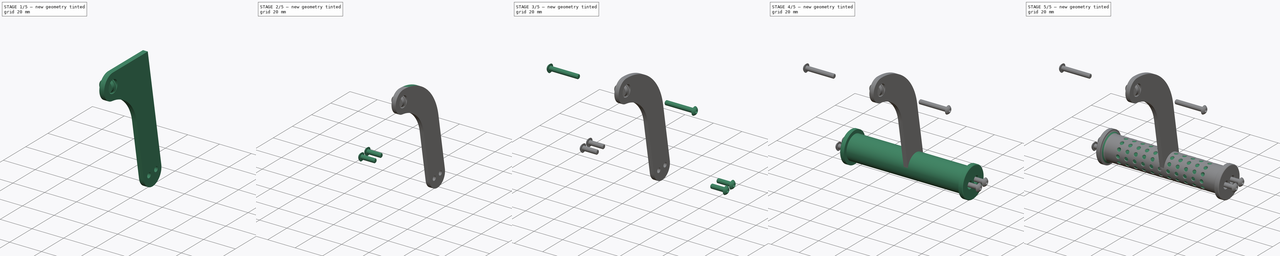
[diagram: build sequence overview — one tinted view per stage of 5, left to right]
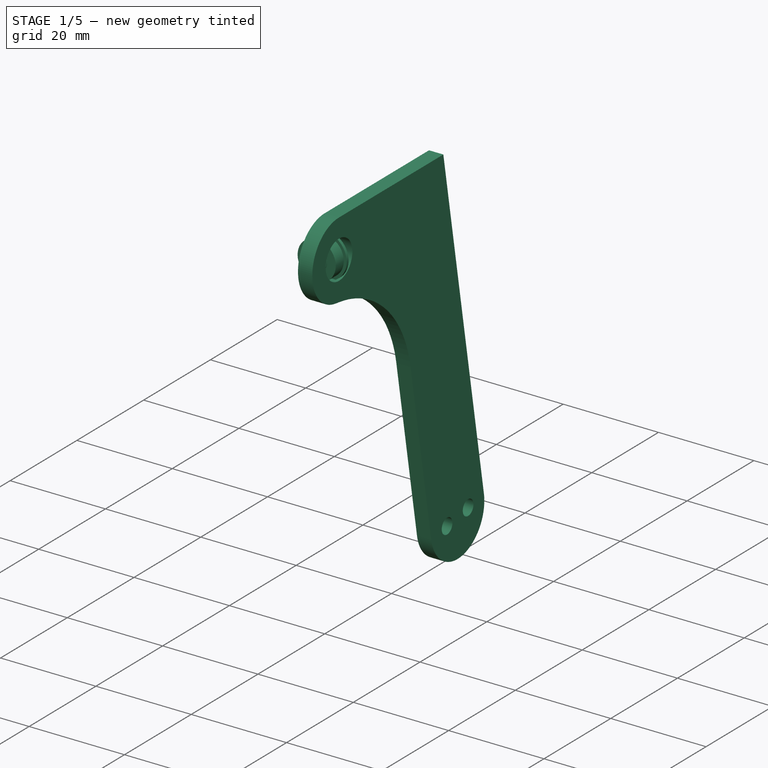
[diagram: stage 1 of 5 — iso view after this stage's code; geometry added in this stage tinted green]
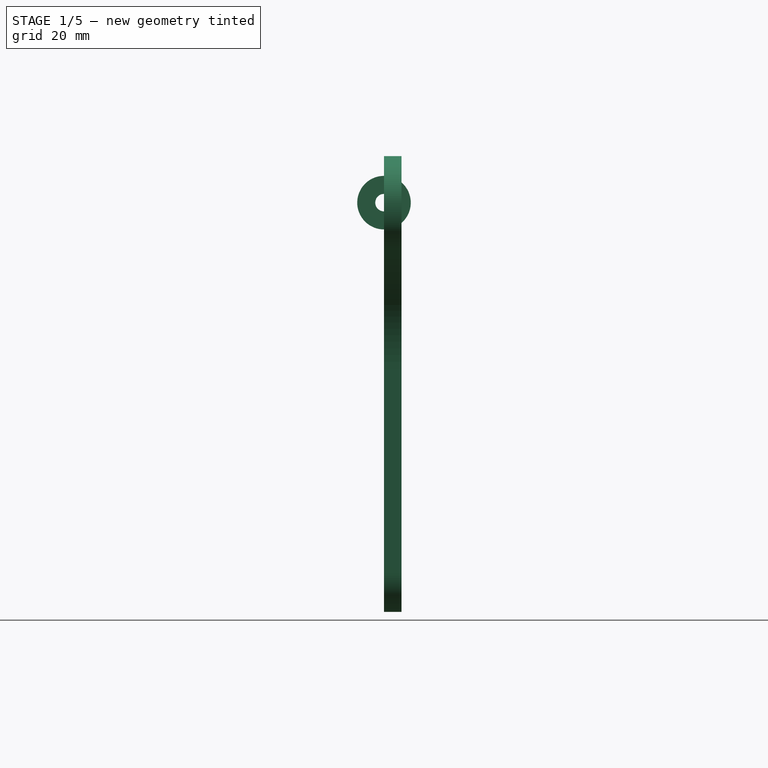
[diagram: stage 1 of 5 — front view after this stage's code; geometry added in this stage tinted green]
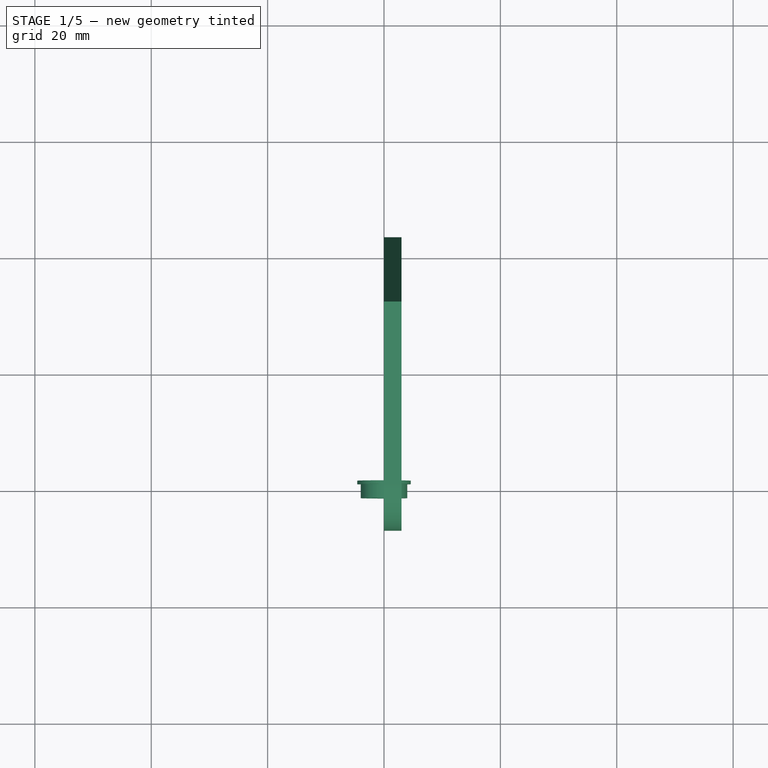
[diagram: stage 1 of 5 — top view after this stage's code; geometry added in this stage tinted green]
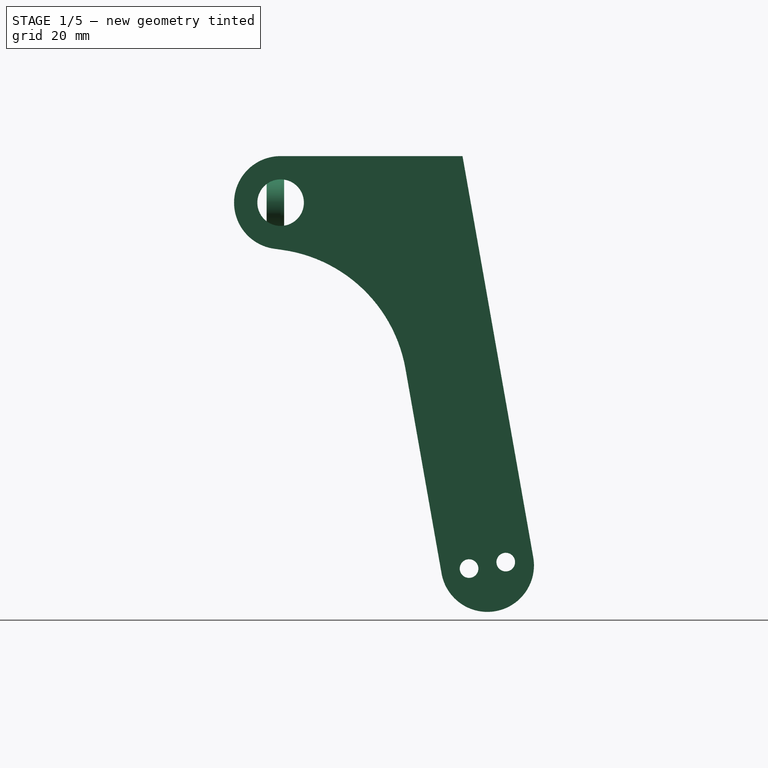
[diagram: stage 1 of 5 — right view after this stage's code; geometry added in this stage tinted green]
FCSTD DOCUMENT  (FreeCAD 2024.1006R14555 (Git shallow))
Label: handle
License: Creative Commons Attribution 4.0
LicenseURL: https://creativecommons.org/licenses/by/4.0/
objects: App::Link×7, Sketcher::SketchObject×7, Part::FeaturePython×6, PartDesign::Body×4, PartDesign::Pad×3, PartDesign::Fillet×3, PartDesign::Revolution×3, App::Part×2, PartDesign::SubShapeBinder×1, PartDesign::Plane×1, PartDesign::Chamfer×1, PartDesign::Groove×1, PartDesign::Line×1, PartDesign::LinearPattern×1, PartDesign::Mirrored×1, PartDesign::PolarPattern×1, PartDesign::MultiTransform×1, App::DocumentObjectGroup×1
note: 72 computed .brp shape members not serialized (recipe doc carries the construction recipe); baked Part::Feature solids carry a one-line shape summary decoded from their .brp
EXTERNAL_REF file=../holonomic-base.FCStd obj=Link002

FEATURE [Sketcher::SketchObject] Sketch
  ArcFitTolerance = 1e-06
  AttachmentSupport = -> [YZ_Plane041]
  ExternalBSplineMaxDegree = 5
  ExternalBSplineTolerance = 0.0001
  FixShape = 1
  FullyConstrained = true
  InternalTolerance = 1e-06
  InvalidShape = false
  MakeInternals = false
  MapMode = 5
  Placement = pos=(0,0,0) rot=(0.57735,0.57735,0.57735;2.0944rad)
  Support = -> [YZ_Plane041]
  TreeRank = 44
  ValidateShape = false
  sketch-geometry (14):
    g0: ArcOfCircle CenterX=0 CenterY=0 CenterZ=0 NormalX=0 NormalY=0 NormalZ=1 AngleXU=0 Radius=8 StartAngle=1.5708 EndAngle=4.57276
    g1: Circle CenterX=0 CenterY=0 CenterZ=0 NormalX=0 NormalY=0 NormalZ=1 AngleXU=0 Radius=4
    g2: LineSegment StartX=0 StartY=8 StartZ=0 EndX=31.2582 EndY=8 EndZ=0
    g3: LineSegment StartX=31.2582 StartY=8 StartZ=0 EndX=43.4136 EndY=-60.9365 EndZ=0
    g4: ArcOfCircle CenterX=35.5351 CenterY=-62.3257 CenterZ=0 NormalX=0 NormalY=0 NormalZ=1 AngleXU=0 Radius=8 StartAngle=3.31613 EndAngle=6.45772
    g5: LineSegment StartX=27.6567 StartY=-63.7149 StartZ=0 EndX=18.3 EndY=-10.6505 EndZ=0
    g6: LineSegment StartX=-1.11338 StartY=-7.92214 StartZ=0 EndX=18.3 EndY=-10.6505 EndZ=0
    g7: LineSegment [constr] StartX=24.6104 StartY=-63.7149 StartZ=0 EndX=15.2537 EndY=-10.6505 EndZ=0
    g8: LineSegment [constr] StartX=27.6567 StartY=-63.7149 StartZ=0 EndX=43.4136 EndY=-60.9365 EndZ=0
    g9: Circle CenterX=32.3838 CenterY=-62.8814 CenterZ=0 NormalX=0 NormalY=0 NormalZ=1 AngleXU=0 Radius=1.6
    g10: Circle CenterX=38.6865 CenterY=-61.7701 CenterZ=0 NormalX=0 NormalY=0 NormalZ=1 AngleXU=0 Radius=1.6
    g11: LineSegment [constr] StartX=27.6567 StartY=-63.7149 StartZ=0 EndX=30.8081 EndY=-63.1592 EndZ=0
    g12: LineSegment [constr] StartX=33.9595 StartY=-62.6036 StartZ=0 EndX=37.1108 EndY=-62.0479 EndZ=0
    g13: LineSegment [constr] StartX=40.2622 StartY=-61.4922 StartZ=0 EndX=43.4136 EndY=-60.9365 EndZ=0
  constraints (41):
    c: Coincident(g0,g-1)
    c: PointOnObject(g0,g-2)
    c: Coincident(g1,g0)
    c: Diameter(g1) = 8
    c: DistanceY(g0,g0) = 8
    c: Coincident(g2,g0)
    c: Horizontal(g2)
    c: Coincident(g3,g2)
    c: Angle(g2,g3) = 1.74533
    c: Tangent(g4,g3) = 1.5708
    c: Coincident(g6,g5)
    c: Tangent(g6,g0) = -1.5708
    c: Parallel(g5,g3)
    c: Parallel(g7,g5)
    c: Distance(g7,g5) = 3
    c: Equal(g0,g4)
    c: Angle(g6,g5) = 1.88496
    c: DistanceX(g0,g5) = 18.3
    c: Tangent(g5,g4) = 1.5708
    c: Distance(g3) = 70
    c: Coincident(g8,g4)
    c: Coincident(g8,g3)
    c: PointOnObject(g9,g8)
    c: Equal(g10,g9)
    c: Diameter(g10) = 3.2
    c: Symmetric(g9,g10,g4)
    c: Coincident(g11,g4)
    c: PointOnObject(g11,g8)
    c: PointOnObject(g12,g8)
    c: PointOnObject(g12,g8)
    c: PointOnObject(g13,g8)
    c: Coincident(g13,g3)
    c: PointOnObject(g13,g10)
    c: PointOnObject(g12,g10)
    c: PointOnObject(g12,g9)
    c: PointOnObject(g11,g9)
    c: Equal(g11,g12)
    c: Horizontal(g7,g5)
    c: Horizontal(g4,g7)
    c: DistanceX(g4) = 35.5351
    c: DistanceY(g4) = -62.3257
FEATURE [PartDesign::Pad] Pad
  AddSubType = 0
  AlongSketchNormal = false
  AutoTaperInnerAngle = true
  CheckUpToFaceLimits = true
  ClaimChildren = false
  Direction = (1,-2e-16,3e-16)
  Fit = 0
  FitJoin = 0
  FixShape = 1
  InnerFit = 0
  InnerFitJoin = 0
  InvalidShape = false
  Length = 3
  Length2 = 10
  Linearize = true
  NewSolid = false
  Profile = -> Sketch
  ReferenceAxis = -> Sketch [N_Axis]
  Refine = true
  Suppress = false
  TaperInnerAngle = 0
  TaperInnerAngleRev = 0
  TreeRank = 45
  Type = 0
  ValidateShape = true
  _ProfileBasedVersion = 1
FEATURE [PartDesign::Fillet] Fillet
  AddSubType = 0
  Base = -> Pad [Edge8]
  BaseFeature = -> Pad
  FixShape = 1
  InvalidShape = false
  NewSolid = false
  Radius = 25
  Refine = true
  SupportTransform = false
  Suppress = false
  TreeRank = 46
  UseAllEdges = false
  ValidateShape = true
FEATURE [PartDesign::Body] Body025  label="TexturedHandle"
  AutoGroupSolids = false
  ClaimAllChildren = false
  ExportMode = 0
  FixShape = 1
  Group = -> [Binder001,Sketch045,Pad026,DatumPlane002,Sketch046,Revolution,Chamfer008,Fillet014,Sketch047,Groove001,DatumLine001,MultiTransform,PolarPattern014,LinearPattern,Mirrored,Sketch056,Pad031]
  InvalidShape = false
  Origin = -> Origin059
  SingleSolid = true
  Tip = -> Pad031
  TreeRank = 238
  ValidateShape = false
  _ExportChildren = -> [Binder001,Pad026,DatumPlane002,Revolution,Chamfer008,Fillet014,Groove001,DatumLine001,MultiTransform,Pad031]
  _GroupVersion = 1
FEATURE [Sketcher::SketchObject] Sketch160
  ArcFitTolerance = 0
  ExternalBSplineMaxDegree = 0
  ExternalBSplineTolerance = 0
  FixShape = 1
  FullyConstrained = true
  InternalTolerance = 1e-06
  InvalidShape = false
  MakeInternals = false
  MapMode = 5
  TreeRank = 253
  ValidateShape = false
  sketch-geometry (10):
    g0: LineSegment StartX=-4.6 StartY=0 StartZ=0 EndX=-4.6 EndY=0.6 EndZ=0
    g1: LineSegment StartX=-4.6 StartY=0.6 StartZ=0 EndX=-3.4 EndY=0.6 EndZ=0
    g2: LineSegment StartX=-3.4 StartY=0.6 StartZ=0 EndX=-3.4 EndY=-2.4 EndZ=0
    g3: LineSegment StartX=-3.4 StartY=-2.4 StartZ=0 EndX=-4 EndY=-2.4 EndZ=0
    g4: LineSegment StartX=-4 StartY=-2.4 StartZ=0 EndX=-4 EndY=0 EndZ=0
    g5: LineSegment StartX=-4 StartY=0 StartZ=0 EndX=-4.6 EndY=0 EndZ=0
    g6: LineSegment StartX=-2.1 StartY=0.6 StartZ=0 EndX=-1.5 EndY=0.6 EndZ=0
    g7: LineSegment StartX=-1.5 StartY=0.6 StartZ=0 EndX=-1.5 EndY=-2.4 EndZ=0
    g8: LineSegment StartX=-1.5 StartY=-2.4 StartZ=0 EndX=-2.1 EndY=-2.4 EndZ=0
    g9: LineSegment StartX=-2.1 StartY=-2.4 StartZ=0 EndX=-2.1 EndY=0.6 EndZ=0
  constraints (30):
    c: Vertical(g0)
    c: Coincident(g0,g1)
    c: Horizontal(g1)
    c: Coincident(g1,g2)
    c: Vertical(g2)
    c: Coincident(g2,g3)
    c: Horizontal(g3)
    c: Coincident(g3,g4)
    c: Vertical(g4)
    c: Coincident(g4,g5)
    c: Coincident(g5,g0)
    c: Horizontal(g5)
    c: Coincident(g6,g7)
    c: Coincident(g7,g8)
    c: Coincident(g8,g9)
    c: Coincident(g9,g6)
    c: Horizontal(g6)
    c: Horizontal(g8)
    c: Vertical(g7)
    c: Vertical(g9)
    c: PointOnObject(g6,g1)
    c: PointOnObject(g4,g-1)
    c: DistanceY(g2,g2) = 3
    c: PointOnObject(g8,g3)
    c: DistanceX(g3) = -4
    c: DistanceX(g6) = -1.5
    c: Equal(g3,g6)
    c: DistanceX(g6,g6) = 0.6
    c: DistanceX(g0) = -4.6
    c: DistanceY(g0,g0) = 0.6
FEATURE [PartDesign::Revolution] Revolution010
  AddSubType = 0
  Angle = 360
  Axis = (0,1,0)
  Base = (0,0,0)
  ClaimChildren = false
  Fit = 0
  FitJoin = 0
  FixShape = 1
  InnerFit = 0
  InnerFitJoin = 0
  InvalidShape = false
  NewSolid = false
  Profile = -> Sketch160
  ReferenceAxis = -> Sketch160 [V_Axis]
  Refine = true
  Suppress = false
  TreeRank = 0
  ValidateShape = true
  _ProfileBasedVersion = 0
FEATURE [PartDesign::Body] Body074  label="CoreMF83"
  AutoGroupSolids = false
  ClaimAllChildren = false
  ExportMode = 0
  FixShape = 1
  Group = -> [Sketch160,Revolution010]
  InvalidShape = false
  Origin = -> Origin158
  Placement = pos=(0,2.8e-14,0) rot=(0,0,1;0rad)
  Tip = -> Revolution010
  TreeRank = 0
  ValidateShape = false
  _ExportChildren = -> [Revolution010]
  _GroupVersion = 1
FEATURE [Sketcher::SketchObject] Sketch161
  ArcFitTolerance = 0
  ExternalBSplineMaxDegree = 0
  ExternalBSplineTolerance = 0
  FixShape = 1
  FullyConstrained = true
  InternalTolerance = 1e-06
  InvalidShape = false
  MakeInternals = false
  MapMode = 5
  TreeRank = 260
  ValidateShape = false
  sketch-geometry (4):
    g0: LineSegment StartX=-3.4 StartY=0.5 StartZ=0 EndX=-2.1 EndY=0.5 EndZ=0
    g1: LineSegment StartX=-2.1 StartY=0.5 StartZ=0 EndX=-2.1 EndY=-2.3 EndZ=0
    g2: LineSegment StartX=-2.1 StartY=-2.3 StartZ=0 EndX=-3.4 EndY=-2.3 EndZ=0
    g3: LineSegment StartX=-3.4 StartY=-2.3 StartZ=0 EndX=-3.4 EndY=0.5 EndZ=0
  constraints (12):
    c: Coincident(g0,g1)
    c: Coincident(g1,g2)
    c: Coincident(g2,g3)
    c: Coincident(g3,g0)
    c: Horizontal(g0)
    c: Horizontal(g2)
    c: Vertical(g1)
    c: Vertical(g3)
    c: DistanceY(g3,g3) = 2.8
    c: DistanceX(g0,g0) = 1.3
    c: DistanceX(g0,g-1) = 2.1
    c: DistanceY(g-1,g0) = 0.5
FEATURE [PartDesign::Revolution] Revolution011
  AddSubType = 0
  Angle = 360
  Axis = (1e-16,1,-1e-16)
  Base = (0,0,0)
  ClaimChildren = false
  Fit = 0
  FitJoin = 0
  FixShape = 1
  InnerFit = 0
  InnerFitJoin = 0
  InvalidShape = false
  NewSolid = false
  Profile = -> Sketch161
  ReferenceAxis = -> Y_Axis092
  Refine = true
  Suppress = false
  TreeRank = 0
  ValidateShape = true
  _ProfileBasedVersion = 0
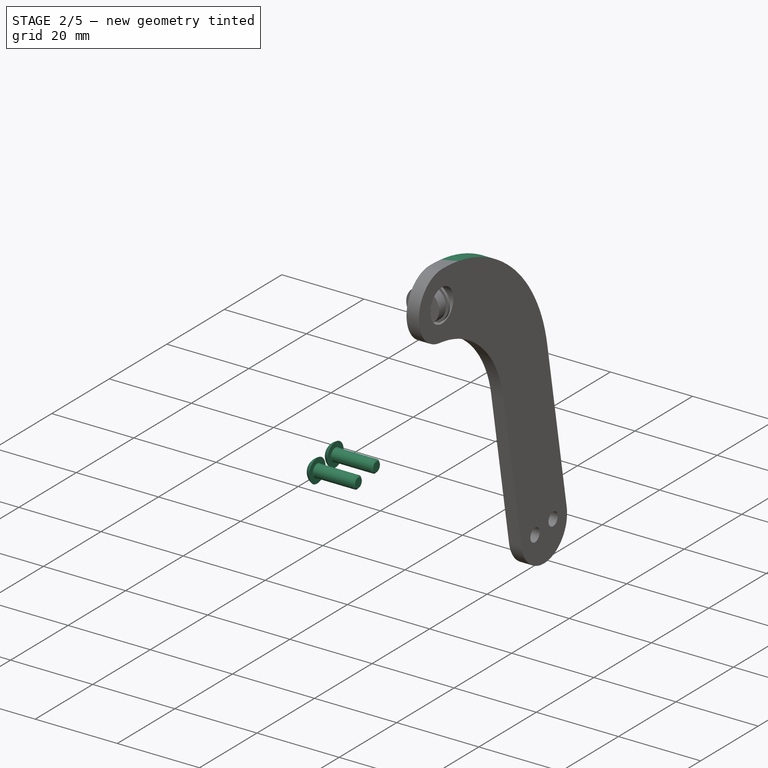
[diagram: stage 2 of 5 — iso view after this stage's code; geometry added in this stage tinted green]
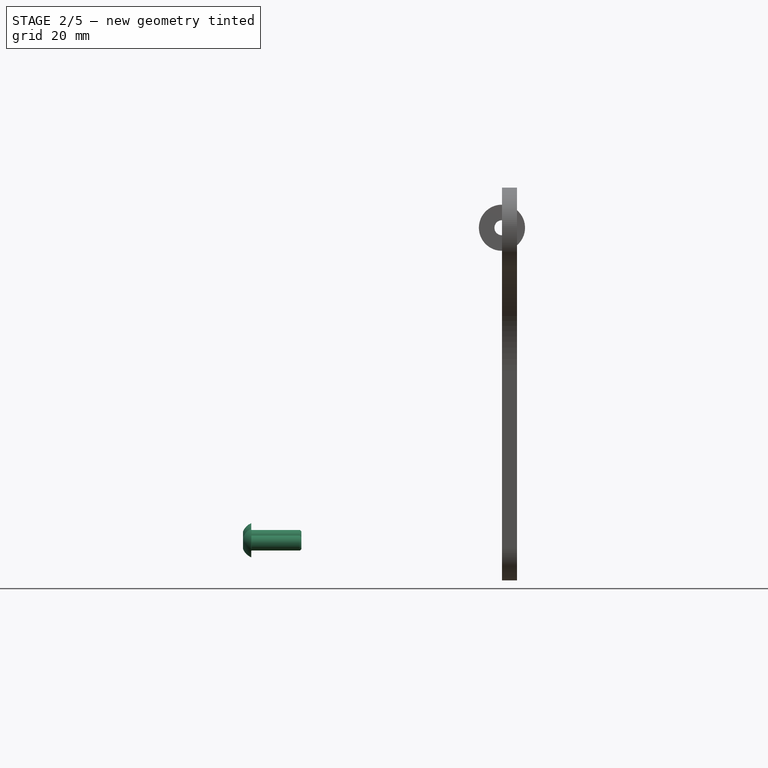
[diagram: stage 2 of 5 — front view after this stage's code; geometry added in this stage tinted green]
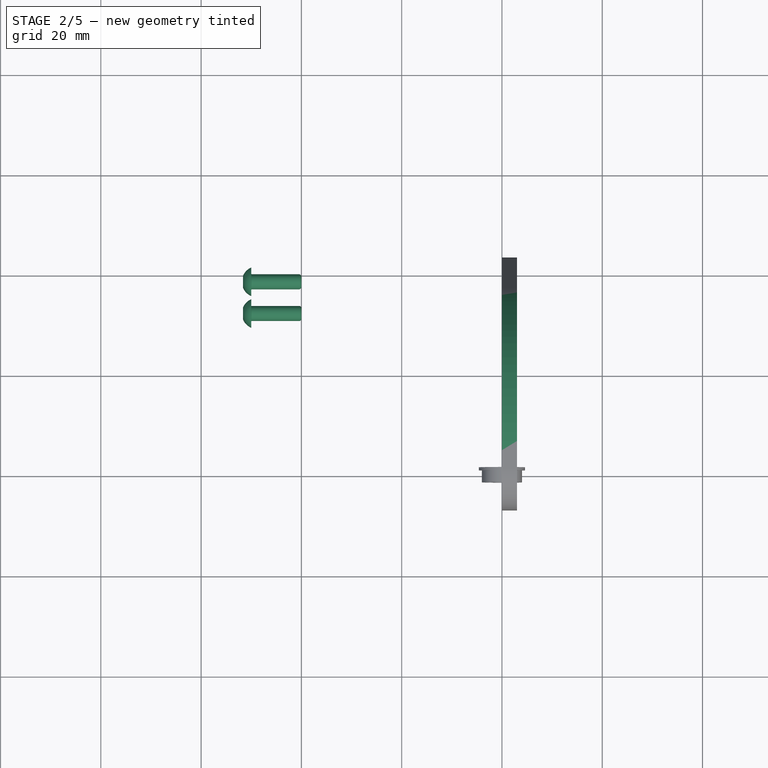
[diagram: stage 2 of 5 — top view after this stage's code; geometry added in this stage tinted green]
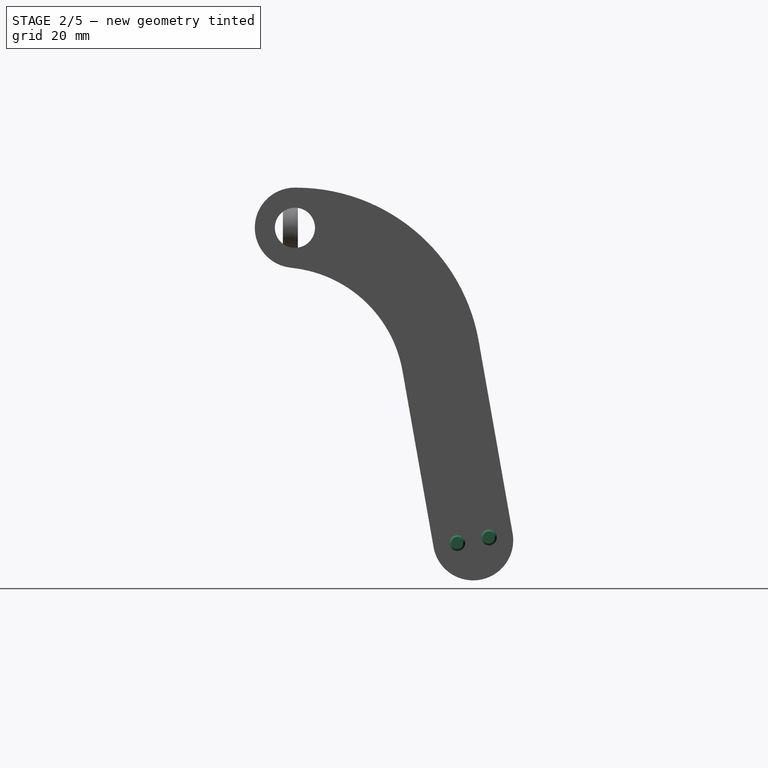
[diagram: stage 2 of 5 — right view after this stage's code; geometry added in this stage tinted green]
FEATURE [PartDesign::Fillet] Fillet012
  AddSubType = 0
  Base = -> Fillet [Edge26]
  BaseFeature = -> Fillet
  FixShape = 1
  InvalidShape = false
  NewSolid = false
  Radius = 37
  Refine = true
  SupportTransform = false
  Suppress = false
  TreeRank = 47
  UseAllEdges = false
  ValidateShape = true
FEATURE [Part::FeaturePython] Screw017  label="M3x10-Vis048"  # WARN: FeaturePython — macro-defined, semantics opaque (R4)
  Diameter = 1
  FixShape = 1
  InvalidShape = false
  Invert = false
  LeftHanded = false
  Length = 2
  LengthCustom = 10
  MatchOuter = false
  Offset = 6
  OffsetAngle = 0
  Placement = pos=(-50,32.3838,-62.8814) rot=(0,-1,0;1.5708rad)
  Thread = false
  TreeRank = 264
  Type = 84
  ValidateShape = false
FEATURE [Part::FeaturePython] Screw018  label="M3x10-Vis049"  # WARN: FeaturePython — macro-defined, semantics opaque (R4)
  Diameter = 1
  FixShape = 1
  InvalidShape = false
  Invert = false
  LeftHanded = false
  Length = 2
  LengthCustom = 10
  MatchOuter = false
  Offset = 6
  OffsetAngle = 0
  Placement = pos=(-50,38.6865,-61.7701) rot=(0,-1,0;1.5708rad)
  Thread = false
  TreeRank = 265
  Type = 84
  ValidateShape = false
FEATURE [App::DocumentObjectGroup] Group005  label="FastenersHandle"
  ClaimAllChildren = true
  ExportMode = 1
  Group = -> [Screw,Screw016,Screw017,Screw018,Screw020,Screw019]
  TreeRank = 266
  _GroupVersion = 1
FEATURE [App::Link] Link  label="Link(HandlePlate)"
  AutoLinkLabel = true
  AutoPlacement = true
  LinkPlacement = pos=(-47,0,5.34058e-05) rot=(0,0,1;0rad)
  LinkedObject = -> Body
  Placement = pos=(-47,0,5.34058e-05) rot=(0,0,1;0rad)
  SyncGroupVisibility = false
  TreeRank = 267
  _LinkVersion = 1
FEATURE [App::Link] Link034  label="Link034(HandlePlate)"
  AutoLinkLabel = true
  AutoPlacement = true
  LinkPlacement = pos=(-50,-3.05176e-05,5.34058e-05) rot=(0,0,1;0rad)
  LinkedObject = -> Body
  Placement = pos=(-50,-3.05176e-05,5.34058e-05) rot=(0,0,1;0rad)
  SyncGroupVisibility = false
  TreeRank = 268
  _LinkVersion = 1
FEATURE [App::Link] Link035  label="Link035(MF83)"
  AutoLinkLabel = true
  AutoPlacement = true
  LinkPlacement = pos=(-44.0001,-0.000183785,4.2422e-05) rot=(0.447214,0.447214,-0.774597;1.82348rad)
  LinkedObject = -> Part034
  Placement = pos=(-44.0001,-0.000183785,4.2422e-05) rot=(0.447214,0.447214,-0.774597;1.82348rad)
  SyncGroupVisibility = false
  TreeRank = 269
  _LinkVersion = 1
FEATURE [App::Link] Link036  label="Link036(MF83)"
  AutoLinkLabel = true
  AutoPlacement = true
  LinkPlacement = pos=(49.9999,-0.000188863,0.000106904) rot=(0.447214,0.447214,-0.774597;1.82348rad)
  LinkedObject = -> Part034
  Placement = pos=(49.9999,-0.000188863,0.000106904) rot=(0.447214,0.447214,-0.774597;1.82348rad)
  SyncGroupVisibility = false
  TreeRank = 270
  _LinkVersion = 1
FEATURE [App::Link] Link037  label="Link037(MF83)"
  AutoLinkLabel = true
  AutoPlacement = true
  LinkPlacement = pos=(-49.9999,-0.000268316,3.11479e-05) rot=(0.447214,-0.447214,0.774597;1.82348rad)
  LinkedObject = -> Part034
  Placement = pos=(-49.9999,-0.000268316,3.11479e-05) rot=(0.447214,-0.447214,0.774597;1.82348rad)
  SyncGroupVisibility = false
  TreeRank = 271
  _LinkVersion = 1
FEATURE [App::Part] Part  label="Handle"
  ClaimAllChildren = false
  ExportMode = 1
  Group = -> [Body025,Group005,Screw,Screw020,Screw017,Screw019,Screw016,Screw018,Body,Link030,Link032,Link,Link034,Link035,Link036,Link037]
  Origin = -> Origin
  TreeRank = 274
  _ExportChildren = -> [Body025,Group005,Body,Link030,Link032,Link,Link034,Link035,Link036,Link037]
  _GroupVersion = 1

RESOLVED EXTERNAL PARTS (link-assembly join: the EXTERNAL_REF files above that resolve inside this repo's crawl, each included once):
---- part ../holonomic-base.FCStd = doc fcstd_e8dfe22405e7 ----
FCSTD DOCUMENT  (FreeCAD 2024.1006R14555 (Git shallow))
Label: holonomic-base
License: All rights reserved
LicenseURL: http://en.wikipedia.org/wiki/All_rights_reserved
objects: App::Link×19, App::Part×1
EXTERNAL_REF file=electronical-parts/otos-sensor.FCStd obj=Part006
EXTERNAL_REF file=mechanical-parts/column-motor.FCStd obj=Part001
EXTERNAL_REF file=mechanical-parts/column-motor.FCStd obj=Body019
EXTERNAL_REF file=mechanical-parts/column-motor.FCStd obj=Part020
EXTERNAL_REF file=mechanical-parts/column-motor.FCStd obj=Part022
EXTERNAL_REF file=mechanical-parts/column-motor.FCStd obj=Part014
EXTERNAL_REF file=mechanical-parts/column-motor.FCStd obj=Part025
EXTERNAL_REF file=mechanical-parts/column-motor.FCStd obj=Part031
EXTERNAL_REF file=mechanical-parts/column-motor.FCStd obj=Part033
EXTERNAL_REF file=electronical-parts/beacon_assembled.FCStd obj=Part007
EXTERNAL_REF file=mechanical-parts/column-motor.FCStd obj=Part015
EXTERNAL_REF file=mechanical-parts/column-motor.FCStd obj=Part046
EXTERNAL_REF file=mechanical-parts/column-motor.FCStd obj=Part044
EXTERNAL_REF file=mechanical-parts/column-motor.FCStd obj=Part039
EXTERNAL_REF file=mechanical-parts/column-motor.FCStd obj=Part036
EXTERNAL_REF file=mechanical-parts/column-motor.FCStd obj=Part048
EXTERNAL_REF file=mechanical-parts/column-motor.FCStd obj=Part042

FEATURE [App::Link] Link  label="Otos_Assembly"
  AutoLinkLabel = false
  AutoPlacement = true
  LinkedObject = -> <external electronical-parts/otos-sensor.FCStd>#Part006
  SyncGroupVisibility = false
  TreeRank = 0
  _LinkVersion = 1
FEATURE [App::Link] Link002  label="Side_A"
  AutoLinkLabel = false
  AutoPlacement = true
  LinkedObject = -> <external mechanical-parts/column-motor.FCStd>#Part001
  SyncGroupVisibility = false
  TreeRank = 0
  _LinkVersion = 1
FEATURE [App::Link] Link003  label="Link003(Semelle)"
  AutoLinkLabel = false
  AutoPlacement = true
  LinkedObject = -> <external mechanical-parts/column-motor.FCStd>#Body019
  SyncGroupVisibility = false
  TreeRank = 0
  _LinkVersion = 1
FEATURE [App::Link] Link004  label="Side_B"
  AutoLinkLabel = false
  AutoPlacement = true
  LinkPlacement = pos=(0,0,0) rot=(0,0,1;2.0944rad)
  LinkedObject = -> Link002
  Placement = pos=(0,0,0) rot=(0,0,1;2.0944rad)
  SyncGroupVisibility = false
  TreeRank = 0
  _LinkVersion = 1
FEATURE [App::Link] Link005  label="Side_C"
  AutoLinkLabel = false
  AutoPlacement = true
  LinkPlacement = pos=(0,0,0) rot=(0,0,1;4.18879rad)
  LinkedObject = -> Link004
  Placement = pos=(0,0,0) rot=(0,0,1;4.18879rad)
  SyncGroupVisibility = false
  TreeRank = 0
  _LinkVersion = 1
FEATURE [App::Link] Link008  label="Link008(Battery_Assembled)"
  AutoLinkLabel = false
  AutoPlacement = true
  LinkPlacement = pos=(0,0,0) rot=(0,0,1;2.0944rad)
  LinkedObject = -> <external mechanical-parts/column-motor.FCStd>#Part020
  Placement = pos=(0,0,0) rot=(0,0,1;2.0944rad)
  SyncGroupVisibility = false
  TreeRank = 0
  _LinkVersion = 1
FEATURE [App::Link] Link009  label="Link009(DriverBoard_Assembled)"
  AutoLinkLabel = false
  AutoPlacement = true
  LinkPlacement = pos=(0,0,0) rot=(0,0,1;4.18879rad)
  LinkedObject = -> <external mechanical-parts/column-motor.FCStd>#Part022
  Placement = pos=(0,0,0) rot=(0,0,1;4.18879rad)
  SyncGroupVisibility = false
  TreeRank = 0
  _LinkVersion = 1
FEATURE [App::Link] Link010  label="Link010(Main_Board_Assembled)"
  AutoLinkLabel = false
  AutoPlacement = true
  LinkPlacement = pos=(0,0,0) rot=(0,0,1;2.0944rad)
  LinkedObject = -> <external mechanical-parts/column-motor.FCStd>#Part014
  Placement = pos=(0,0,0) rot=(0,0,1;2.0944rad)
  SyncGroupVisibility = false
  TreeRank = 0
  _LinkVersion = 1
FEATURE [App::Link] Link011  label="Link011(Ihm_Assembled)"
  AutoLinkLabel = false
  AutoPlacement = true
  LinkPlacement = pos=(0,0,0) rot=(0,0,-1;2.0944rad)
  LinkedObject = -> <external mechanical-parts/column-motor.FCStd>#Part025
  Placement = pos=(0,0,0) rot=(0,0,-1;2.0944rad)
  SyncGroupVisibility = false
  TreeRank = 0
  _LinkVersion = 1
FEATURE [App::Link] Link012  label="Link012(Screen-Assembled)"
  AutoLinkLabel = false
  AutoPlacement = true
  LinkPlacement = pos=(0,0,0) rot=(0,0,1;2.0944rad)
  LinkedObject = -> <external mechanical-parts/column-motor.FCStd>#Part031
  Placement = pos=(0,0,0) rot=(0,0,1;2.0944rad)
  SyncGroupVisibility = false
  TreeRank = 0
  _LinkVersion = 1
FEATURE [App::Link] Link013  label="Link013(BAU_Assembled)"
  AutoLinkLabel = false
  AutoPlacement = true
  LinkPlacement = pos=(0,0,0) rot=(0,0,1.125;0rad)
  LinkedObject = -> <external mechanical-parts/column-motor.FCStd>#Part033
  Placement = pos=(0,0,0) rot=(0,0,1.125;0rad)
  SyncGroupVisibility = false
  TreeRank = 0
  _LinkVersion = 1
FEATURE [App::Link] Link014  label="Link014(BeaconAssembled)"
  AutoLinkLabel = false
  AutoPlacement = true
  LinkPlacement = pos=(2.0464e-12,-3.8147e-05,320) rot=(0,0,1;4.18879rad)
  LinkedObject = -> <external electronical-parts/beacon_assembled.FCStd>#Part007
  Placement = pos=(2.0464e-12,-3.8147e-05,320) rot=(0,0,1;4.18879rad)
  SyncGroupVisibility = false
  TreeRank = 0
  _LinkVersion = 1
FEATURE [App::Link] Link015  label="Link015(XBee_Assembled)"
  AutoLinkLabel = false
  AutoPlacement = true
  LinkedObject = -> <external mechanical-parts/column-motor.FCStd>#Part015
  SyncGroupVisibility = false
  TreeRank = 0
  _LinkVersion = 1
FEATURE [App::Link] Link019  label="Link019(TopBattery_Assembled)"
  AutoLinkLabel = false
  AutoPlacement = true
  LinkPlacement = pos=(0,0,0) rot=(0,0,1;2.0944rad)
  LinkedObject = -> <external mechanical-parts/column-motor.FCStd>#Part046
  Placement = pos=(0,0,0) rot=(0,0,1;2.0944rad)
  SyncGroupVisibility = false
  TreeRank = 0
  _LinkVersion = 1
FEATURE [App::Link] Link020  label="Link020(Cache10mm_Assembled)"
  AutoLinkLabel = false
  AutoPlacement = true
  LinkedObject = -> <external mechanical-parts/column-motor.FCStd>#Part044
  SyncGroupVisibility = false
  TreeRank = 0
  _LinkVersion = 1
FEATURE [App::Link] Link021  label="Link021(PCA9685_Assembled)"
  AutoLinkLabel = false
  AutoPlacement = true
  LinkedObject = -> <external mechanical-parts/column-motor.FCStd>#Part039
  SyncGroupVisibility = false
  TreeRank = 0
  _LinkVersion = 1
FEATURE [App::Link] Link023  label="Link023(Servo_Assembled)"
  AutoLinkLabel = false
  AutoPlacement = true
  LinkedObject = -> <external mechanical-parts/column-motor.FCStd>#Part036
  SyncGroupVisibility = false
  TreeRank = 0
  _LinkVersion = 1
FEATURE [App::Link] Link024  label="Link024(CacheCable_Assembled)"
  AutoLinkLabel = true
  AutoPlacement = true
  LinkedObject = -> <external mechanical-parts/column-motor.FCStd>#Part048
  SyncGroupVisibility = false
  TreeRank = 1
  _LinkVersion = 1
FEATURE [App::Link] Link025  label="Link025(Pump_Assembled)"
  AutoLinkLabel = true
  AutoPlacement = true
  LinkedObject = -> <external mechanical-parts/column-motor.FCStd>#Part042
  SyncGroupVisibility = false
  TreeRank = 2
  _LinkVersion = 1
FEATURE [App::Part] Part  label="holonomic-base-2025"
  ClaimAllChildren = false
  ExportMode = 1
  Group = -> [Link,Link002,Link003,Link004,Link005,Link008,Link009,Link010,Link011,Link012,Link013,Link014,Link015,Link019,Link020,Link021,Link023,Link024,Link025]
  Origin = -> Origin
  TreeRank = 5
  _ExportChildren = -> [Link,Link002,Link003,Link004,Link005,Link008,Link009,Link010,Link011,Link012,Link013,Link014,Link015,Link019,Link020,Link021,Link023,Link024,Link025]
  _GroupVersion = 1
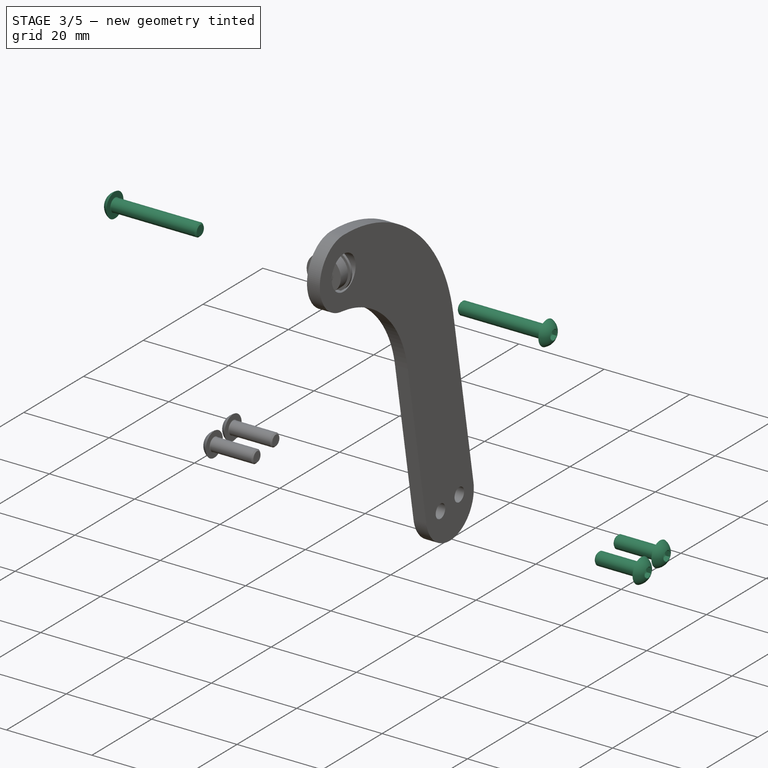
[diagram: stage 3 of 5 — iso view after this stage's code; geometry added in this stage tinted green]
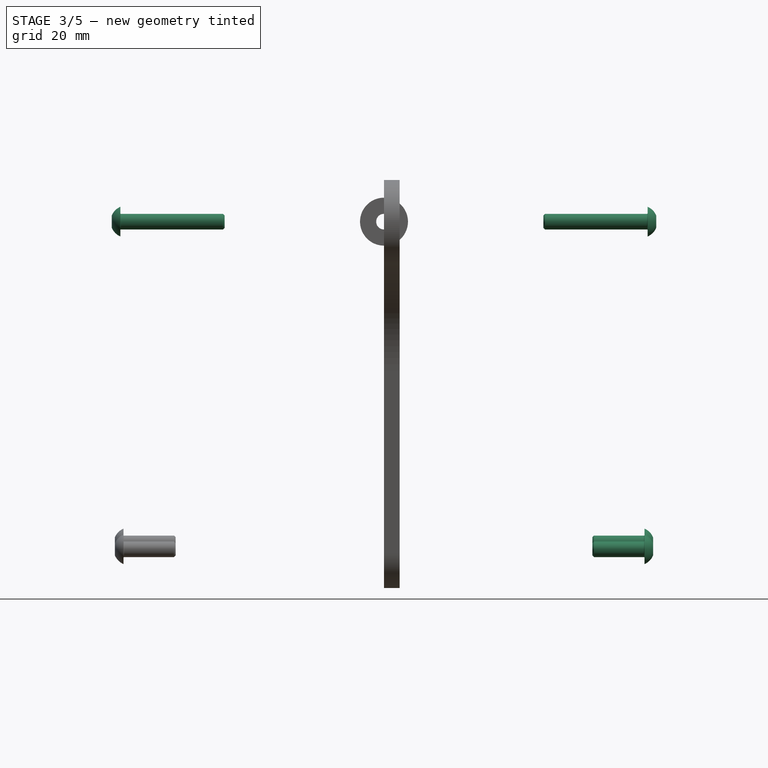
[diagram: stage 3 of 5 — front view after this stage's code; geometry added in this stage tinted green]
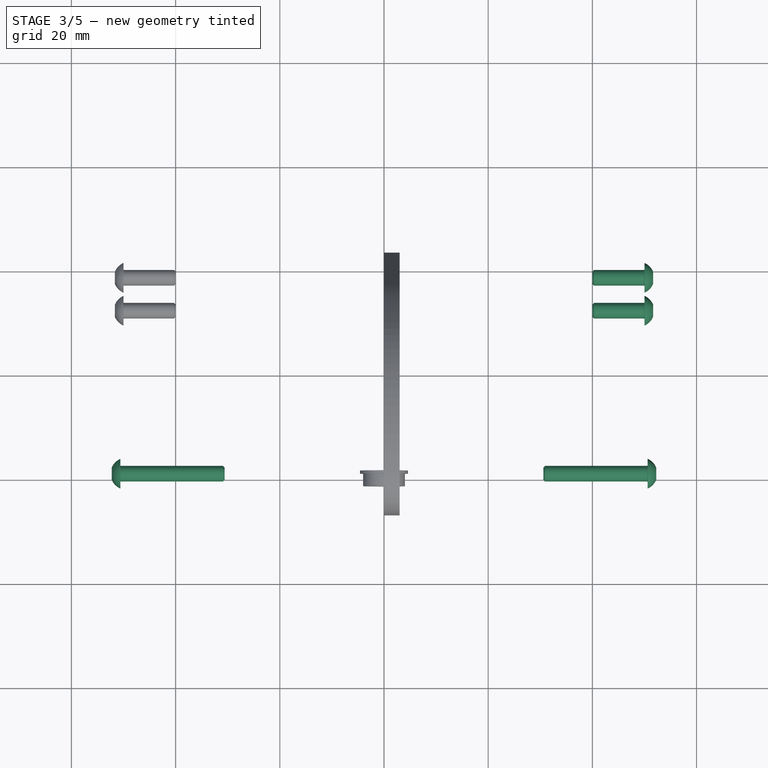
[diagram: stage 3 of 5 — top view after this stage's code; geometry added in this stage tinted green]
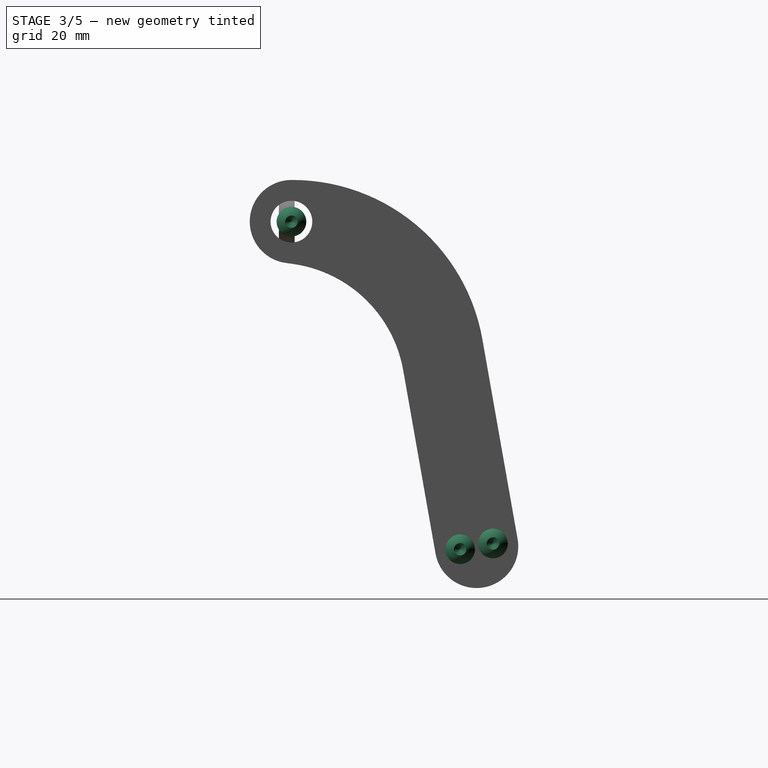
[diagram: stage 3 of 5 — right view after this stage's code; geometry added in this stage tinted green]
FEATURE [PartDesign::SubShapeBinder] Binder001  label="Binder001(Fillet012)"
  BindCopyOnChange = 0
  BindMode = 2
  ClaimChildren = false
  Context = -> <external ../holonomic-base.FCStd>#Link002 [Part015.Part017.Body025.Binder001.]
  EdgeTolerance = 1e-06
  FillStyle = 0
  FixShape = 1
  Fuse = false
  InvalidShape = false
  MakeFace = true
  MergeEdges = true
  OffsetFill = false
  OffsetIntersection = false
  OffsetJoinType = 0
  OffsetOpenResult = false
  Outline = false
  PartialLoad = false
  Relative = true
  SplitEdges = false
  TightBound = false
  TreeRank = 235
  ValidateShape = false
  _Version = 8
FEATURE [PartDesign::Plane] DatumPlane002
  AttachmentOffset = pos=(0,0,0) rot=(0,1,0;1.5708rad)
  FixShape = 1
  InvalidShape = false
  Length = 88
  MapMode = 45
  MinimumLength = 10
  MinimumWidth = 10
  Placement = pos=(1.95e-14,35.5351,-62.3257) rot=(0,0.707107,0.707107;3.14159rad)
  ResizeMode = 0
  TreeRank = 118
  ValidateShape = false
  Width = 22
FEATURE [App::Link] Link030  label="Link030(HandlePlate)"
  AutoLinkLabel = true
  AutoPlacement = true
  LinkPlacement = pos=(47,-2.67029e-05,5.34058e-05) rot=(0,0,1;0rad)
  LinkedObject = -> Body
  Placement = pos=(47,-2.67029e-05,5.34058e-05) rot=(0,0,1;0rad)
  SyncGroupVisibility = false
  TreeRank = 241
  _LinkVersion = 1
FEATURE [App::Link] Link032  label="Link032(MF83)"
  AutoLinkLabel = true
  AutoPlacement = true
  LinkPlacement = pos=(44,5.78165e-06,1.52588e-05) rot=(0,0,1;1.5708rad)
  LinkedObject = -> Part034
  Placement = pos=(44,5.78165e-06,1.52588e-05) rot=(0,0,1;1.5708rad)
  SyncGroupVisibility = false
  TreeRank = 65
  _LinkVersion = 1
FEATURE [Part::FeaturePython] Screw019  label="M3x20-Vis"  # WARN: FeaturePython — macro-defined, semantics opaque (R4)
  Diameter = 1
  FixShape = 1
  InvalidShape = false
  Invert = false
  LeftHanded = false
  Length = 6
  LengthCustom = 20
  MatchOuter = false
  OffsetAngle = 0
  Placement = pos=(50.6,0,-2.99e-14) rot=(0,1,0;1.5708rad)
  Thread = false
  TreeRank = 140
  Type = 84
  ValidateShape = false
FEATURE [Part::FeaturePython] Screw020  label="M3x20-Vis001"  # WARN: FeaturePython — macro-defined, semantics opaque (R4)
  Diameter = 1
  FixShape = 1
  InvalidShape = false
  Invert = false
  LeftHanded = false
  Length = 6
  LengthCustom = 20
  MatchOuter = false
  OffsetAngle = 0
  Placement = pos=(-50.6,0,-1.12e-14) rot=(0,-1,0;1.5708rad)
  Thread = false
  TreeRank = 141
  Type = 84
  ValidateShape = false
FEATURE [PartDesign::Body] Body075  label="SleeveMF83"
  AutoGroupSolids = false
  ClaimAllChildren = false
  ExportMode = 0
  FixShape = 1
  Group = -> [Sketch161,Revolution011]
  InvalidShape = false
  Origin = -> Origin159
  Placement = pos=(0,2.8e-14,0) rot=(0,0,1;0rad)
  SingleSolid = true
  Tip = -> Revolution011
  TreeRank = 0
  ValidateShape = false
  _ExportChildren = -> [Revolution011]
  _GroupVersion = 1
FEATURE [App::Part] Part034  label="MF83"
  ClaimAllChildren = false
  ExportMode = 1
  Group = -> [Body074,Body075]
  Origin = -> Origin160
  TreeRank = 246
  _ExportChildren = -> [Body074,Body075]
  _GroupVersion = 1
FEATURE [Part::FeaturePython] Screw  label="M3x10-Vis"  # WARN: FeaturePython — macro-defined, semantics opaque (R4)
  Diameter = 1
  FixShape = 1
  InvalidShape = false
  Invert = false
  LeftHanded = false
  Length = 2
  LengthCustom = 10
  MatchOuter = false
  Offset = 6
  OffsetAngle = 0
  Placement = pos=(50,38.6865,-61.7701) rot=(0,1,0;1.5708rad)
  Thread = false
  TreeRank = 262
  Type = 84
  ValidateShape = false
FEATURE [Part::FeaturePython] Screw016  label="M3x10-Vis047"  # WARN: FeaturePython — macro-defined, semantics opaque (R4)
  Diameter = 1
  FixShape = 1
  InvalidShape = false
  Invert = false
  LeftHanded = false
  Length = 2
  LengthCustom = 10
  MatchOuter = false
  Offset = 6
  OffsetAngle = 0
  Placement = pos=(50,32.3838,-62.8814) rot=(0,1,0;1.5708rad)
  Thread = false
  TreeRank = 263
  Type = 84
  ValidateShape = false
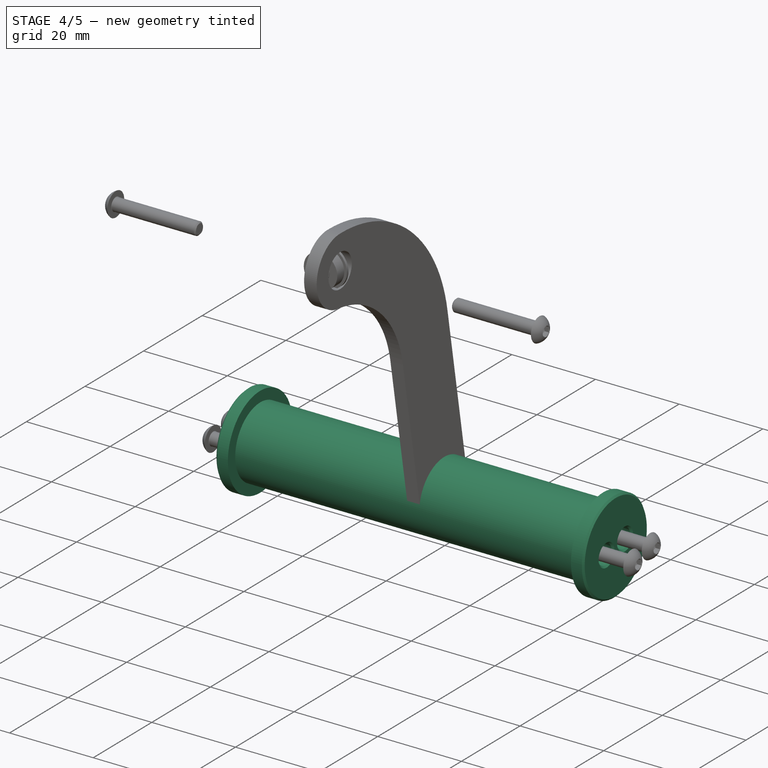
[diagram: stage 4 of 5 — iso view after this stage's code; geometry added in this stage tinted green]
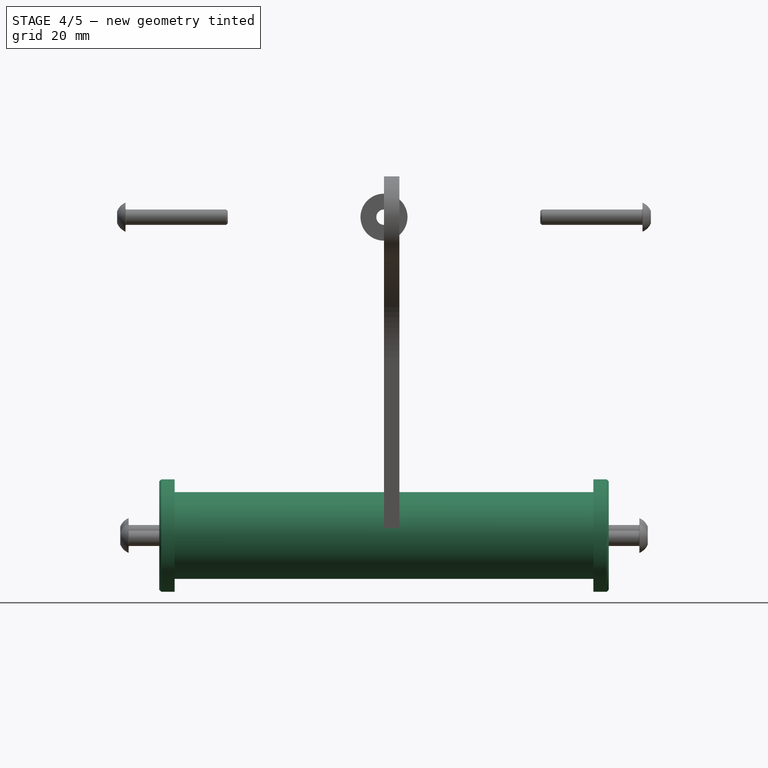
[diagram: stage 4 of 5 — front view after this stage's code; geometry added in this stage tinted green]
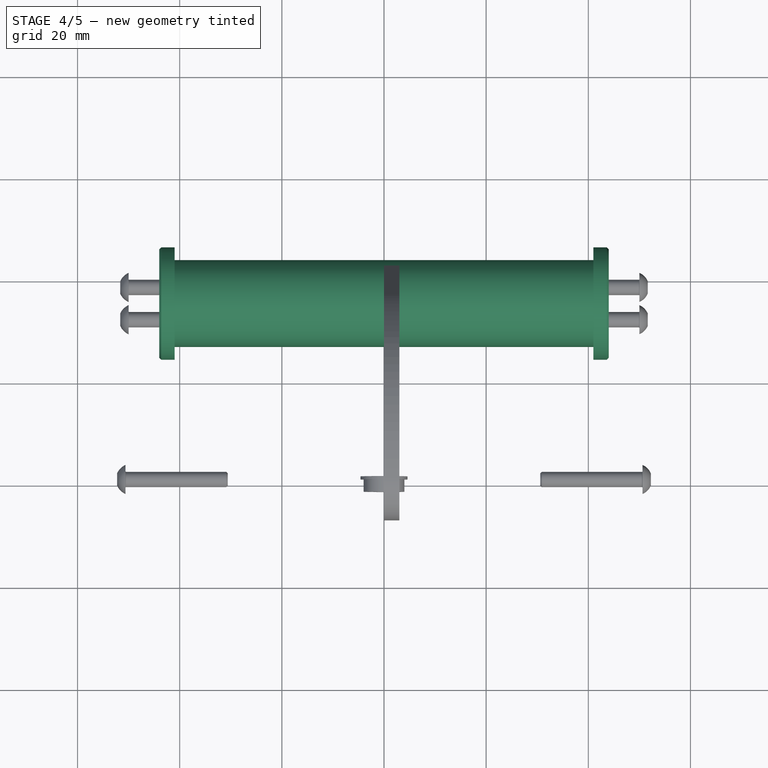
[diagram: stage 4 of 5 — top view after this stage's code; geometry added in this stage tinted green]
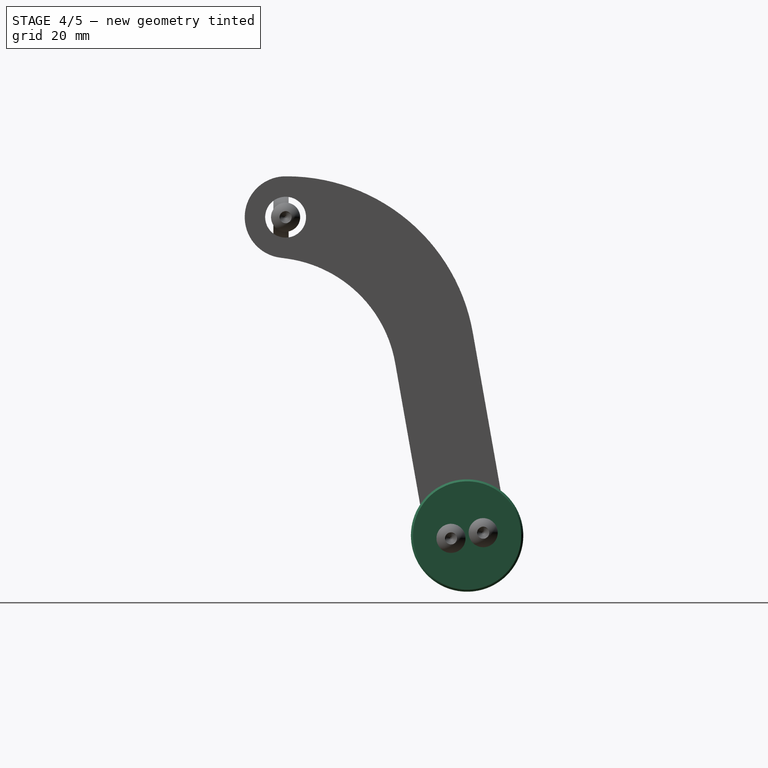
[diagram: stage 4 of 5 — right view after this stage's code; geometry added in this stage tinted green]
FEATURE [PartDesign::Body] Body  label="HandlePlate"
  AutoGroupSolids = false
  ClaimAllChildren = false
  ExportMode = 0
  FixShape = 1
  Group = -> [Sketch,Pad,Fillet,Fillet012]
  InvalidShape = false
  Origin = -> Origin055
  Placement = pos=(44,0,0) rot=(0,0,1;0rad)
  SingleSolid = true
  Tip = -> Fillet012
  TreeRank = 236
  ValidateShape = false
  _ExportChildren = -> [Pad,Fillet,Fillet012]
  _GroupVersion = 1
FEATURE [Sketcher::SketchObject] Sketch045
  ArcFitTolerance = 1e-06
  AttachmentSupport = -> [YZ_Plane045]
  ExternalBSplineMaxDegree = 5
  ExternalBSplineTolerance = 0.0001
  ExternalGeometry = -> [Binder001]
  FixShape = 1
  FullyConstrained = true
  InternalTolerance = 1e-06
  InvalidShape = false
  MakeInternals = false
  MapMode = 5
  Placement = pos=(0,0,0) rot=(0.57735,0.57735,0.57735;2.0944rad)
  Support = -> [YZ_Plane045]
  TreeRank = 115
  ValidateShape = false
  sketch-geometry (4):
    g0: Circle [constr] CenterX=35.5351 CenterY=-62.3257 CenterZ=0 NormalX=0 NormalY=0 NormalZ=1 AngleXU=0 Radius=6
    g1: Circle CenterX=35.5351 CenterY=-62.3257 CenterZ=0 NormalX=0 NormalY=0 NormalZ=1 AngleXU=0 Radius=8.5
    g2: Circle CenterX=32.3838 CenterY=-62.8814 CenterZ=0 NormalX=0 NormalY=0 NormalZ=1 AngleXU=0 Radius=2.3
    g3: Circle CenterX=38.6865 CenterY=-61.7701 CenterZ=0 NormalX=0 NormalY=0 NormalZ=1 AngleXU=0 Radius=2.3
  constraints (8):
    c: Coincident(g0,g-3)
    c: Diameter(g0) = 12
    c: Coincident(g1,g0)
    c: Diameter(g1) = 17
    c: Coincident(g2,g-4)
    c: Coincident(g3,g-5)
    c: Equal(g3,g2)
    c: Diameter(g3) = 4.6
FEATURE [PartDesign::Pad] Pad026
  AddSubType = 0
  AlongSketchNormal = false
  AutoTaperInnerAngle = true
  CheckUpToFaceLimits = true
  ClaimChildren = false
  Direction = (1,-2e-16,3e-16)
  Fit = 0
  FitJoin = 0
  FixShape = 1
  InnerFit = 0
  InnerFitJoin = 0
  InvalidShape = false
  Length = 88
  Length2 = 10
  Linearize = true
  Midplane = true
  NewSolid = false
  Profile = -> Sketch045
  ReferenceAxis = -> Sketch045 [N_Axis]
  Refine = true
  Suppress = false
  TaperInnerAngle = 0
  TaperInnerAngleRev = 0
  TreeRank = 116
  Type = 0
  ValidateShape = true
  _ProfileBasedVersion = 1
FEATURE [Sketcher::SketchObject] Sketch046
  ArcFitTolerance = 1e-06
  AttachmentSupport = -> [DatumPlane002]
  ExternalBSplineMaxDegree = 5
  ExternalBSplineTolerance = 0.0001
  ExternalGeometry = -> [Pad026]
  FixShape = 1
  FullyConstrained = true
  InternalTolerance = 1e-06
  InvalidShape = false
  MakeInternals = false
  MapMode = 5
  Placement = pos=(1.95e-14,35.5351,-62.3257) rot=(0,0.707107,0.707107;3.14159rad)
  Support = -> [DatumPlane002]
  TreeRank = 119
  ValidateShape = false
  sketch-geometry (8):
    g0: LineSegment StartX=-44 StartY=8.5 StartZ=0 EndX=-41 EndY=8.5 EndZ=0
    g1: LineSegment StartX=-41 StartY=8.5 StartZ=0 EndX=-41 EndY=11 EndZ=0
    g2: LineSegment StartX=-41 StartY=11 StartZ=0 EndX=-44 EndY=11 EndZ=0
    g3: LineSegment StartX=-44 StartY=11 StartZ=0 EndX=-44 EndY=8.5 EndZ=0
    g4: LineSegment StartX=44 StartY=8.5 StartZ=0 EndX=41 EndY=8.5 EndZ=0
    g5: LineSegment StartX=41 StartY=8.5 StartZ=0 EndX=41 EndY=11 EndZ=0
    g6: LineSegment StartX=41 StartY=11 StartZ=0 EndX=44 EndY=11 EndZ=0
    g7: LineSegment StartX=44 StartY=11 StartZ=0 EndX=44 EndY=8.5 EndZ=0
  constraints (22):
    c: Coincident(g0,g1)
    c: Coincident(g1,g2)
    c: Coincident(g2,g3)
    c: Coincident(g3,g0)
    c: Horizontal(g0)
    c: Horizontal(g2)
    c: Vertical(g1)
    c: Vertical(g3)
    c: Coincident(g4,g5)
    c: Coincident(g5,g6)
    c: Coincident(g6,g7)
    c: Coincident(g7,g4)
    c: Horizontal(g4)
    c: Horizontal(g6)
    c: Vertical(g5)
    c: Vertical(g7)
    c: Symmetric(g4,g0,g-2)
    c: Equal(g0,g4)
    c: Equal(g5,g1)
    c: DistanceX(g2,g2) = 3
    c: DistanceY(g-1,g2) = 11
    c: Coincident(g0,g-3)
FEATURE [PartDesign::Revolution] Revolution
  AddSubType = 0
  Angle = 360
  Axis = (-1,1e-16,-1e-16)
  Base = (1.95e-14,35.5351,-62.3257)
  BaseFeature = -> Pad026
  ClaimChildren = false
  Fit = 0
  FitJoin = 0
  FixShape = 1
  InnerFit = 0
  InnerFitJoin = 0
  InvalidShape = false
  Linearize = true
  NewSolid = false
  Profile = -> Sketch046
  ReferenceAxis = -> Sketch046 [H_Axis]
  Refine = true
  Suppress = false
  TreeRank = 120
  ValidateShape = true
  _ProfileBasedVersion = 1
FEATURE [PartDesign::Chamfer] Chamfer008
  AddSubType = 0
  Angle = 45
  Base = -> Revolution [Edge11,Edge9,Edge17,Edge15,Edge13,Edge12]
  BaseFeature = -> Revolution
  ChamferType = 0
  FixShape = 1
  FlipDirection = false
  InvalidShape = false
  NewSolid = false
  Refine = true
  Size = 0.4
  Size2 = 1
  SupportTransform = false
  Suppress = false
  TreeRank = 121
  UseAllEdges = false
  ValidateShape = true
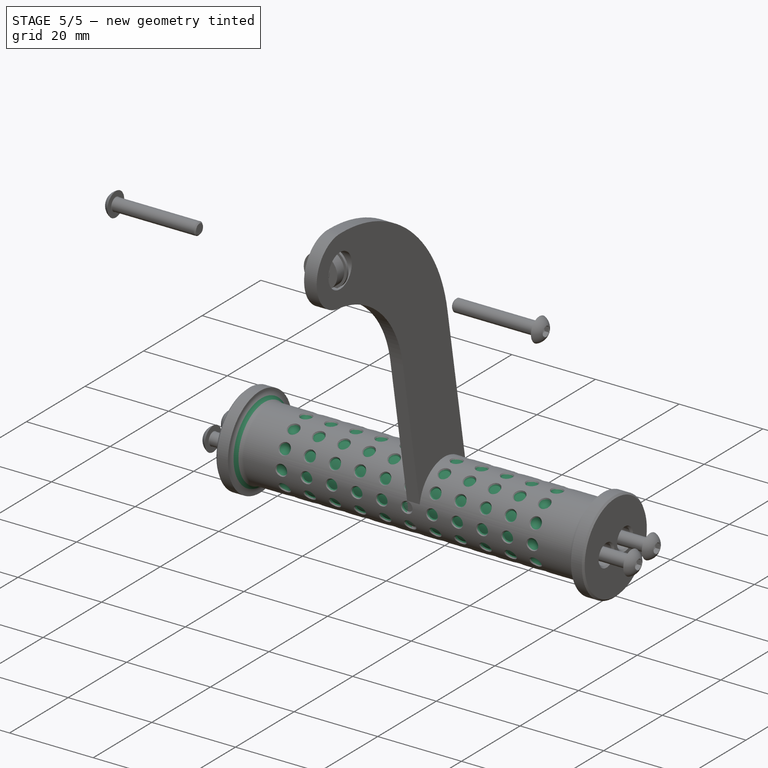
[diagram: stage 5 of 5 — iso view after this stage's code; geometry added in this stage tinted green]
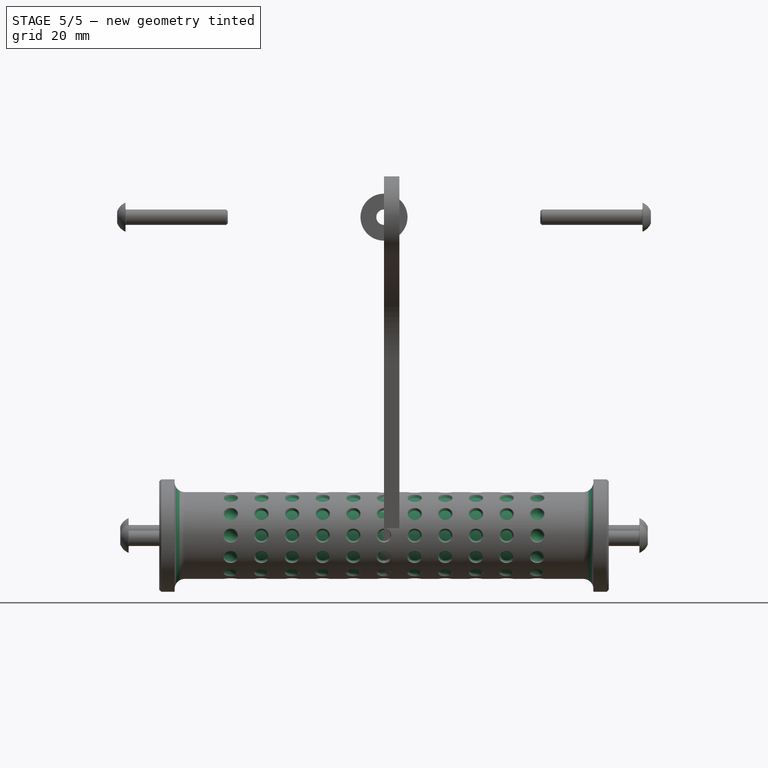
[diagram: stage 5 of 5 — front view after this stage's code; geometry added in this stage tinted green]
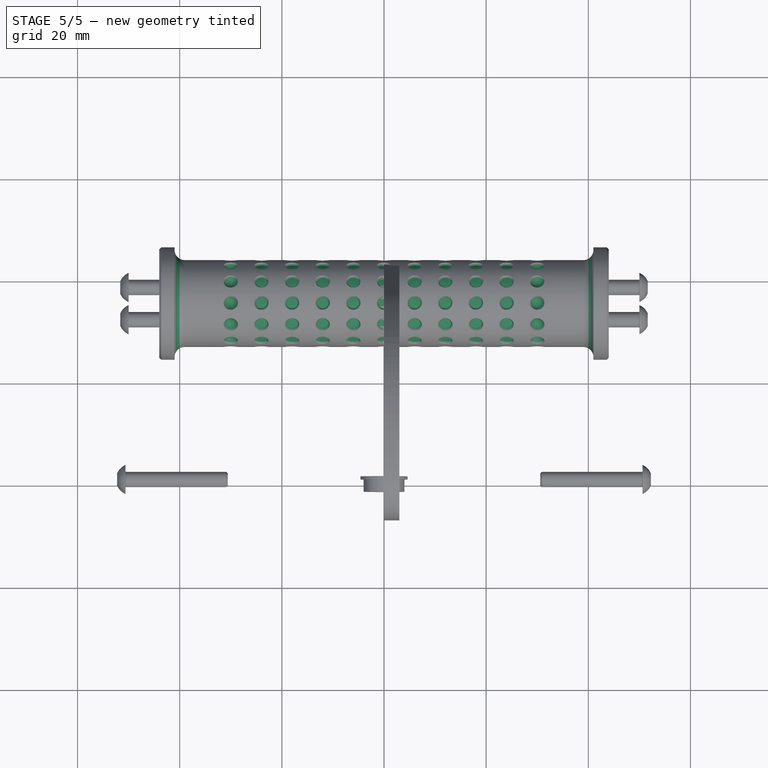
[diagram: stage 5 of 5 — top view after this stage's code; geometry added in this stage tinted green]
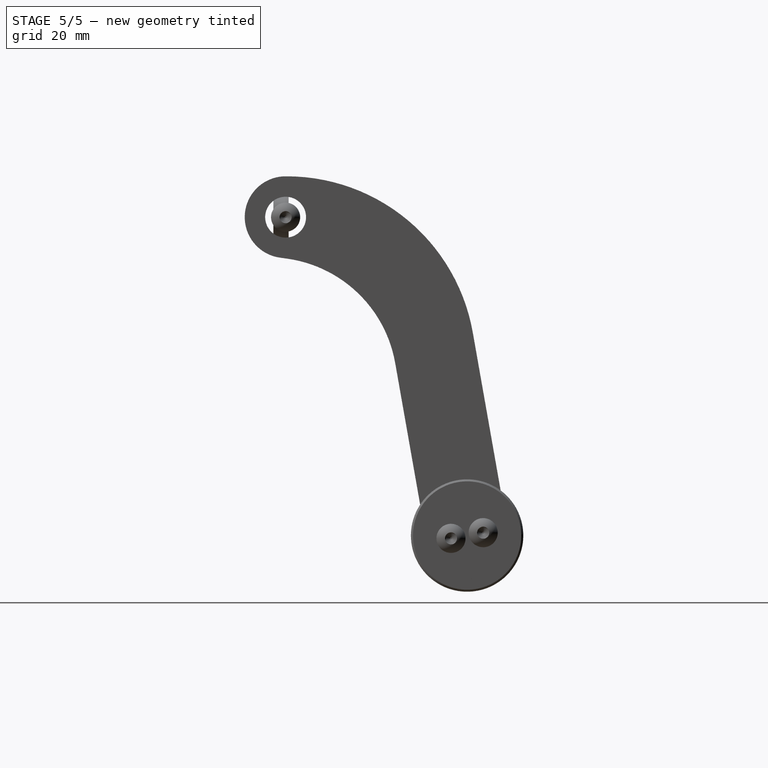
[diagram: stage 5 of 5 — right view after this stage's code; geometry added in this stage tinted green]
FEATURE [PartDesign::Fillet] Fillet014
  AddSubType = 0
  Base = -> Chamfer008 [Edge7,Edge11]
  BaseFeature = -> Chamfer008
  FixShape = 1
  InvalidShape = false
  NewSolid = false
  Radius = 2
  Refine = true
  SupportTransform = false
  Suppress = false
  TreeRank = 122
  UseAllEdges = false
  ValidateShape = true
FEATURE [Sketcher::SketchObject] Sketch047
  ArcFitTolerance = 1e-06
  AttachmentSupport = -> [DatumPlane002]
  ExternalBSplineMaxDegree = 5
  ExternalBSplineTolerance = 0.0001
  FixShape = 1
  FullyConstrained = true
  InternalTolerance = 1e-06
  InvalidShape = false
  MakeInternals = false
  MapMode = 5
  Placement = pos=(1.95e-14,35.5351,-62.3257) rot=(0,0.707107,0.707107;3.14159rad)
  Support = -> [DatumPlane002]
  TreeRank = 143
  ValidateShape = false
  sketch-geometry (2):
    g0: ArcOfCircle CenterX=0 CenterY=9 CenterZ=0 NormalX=0 NormalY=0 NormalZ=1 AngleXU=0 Radius=1.5 StartAngle=1.5708 EndAngle=4.71239
    g1: LineSegment StartX=0 StartY=10.5 StartZ=0 EndX=0 EndY=7.5 EndZ=0
  constraints (7):
    c: PointOnObject(g0,g-2)
    c: PointOnObject(g0,g-2)
    c: Coincident(g1,g0)
    c: Coincident(g1,g0)
    c: Vertical(g1)
    c: DistanceY(g-1,g0) = 9
    c: Radius(g0) = 1.5
FEATURE [PartDesign::Groove] Groove001
  AddSubType = 1
  Angle = 360
  Axis = (-1e-16,-2e-16,1)
  Base = (1.95e-14,35.5351,-62.3257)
  BaseFeature = -> Fillet014
  ClaimChildren = false
  Fit = 0
  FitJoin = 0
  FixShape = 1
  InnerFit = 0
  InnerFitJoin = 0
  InvalidShape = false
  Linearize = true
  NewSolid = false
  Profile = -> Sketch047
  ReferenceAxis = -> Sketch047 [V_Axis]
  Refine = true
  Reversed = true
  Suppress = false
  TreeRank = 144
  ValidateShape = true
  _ProfileBasedVersion = 1
FEATURE [PartDesign::Line] DatumLine001
  AttacherType = Attacher::AttachEngineLine
  AttachmentSupport = -> [Groove001]
  FixShape = 1
  InvalidShape = false
  Length = 10
  MapMode = 44
  MinimumLength = 10
  Placement = pos=(-2.90702e-10,35.5351,-62.3382) rot=(0.57735,0.57735,0.57735;2.0944rad)
  ResizeMode = 0
  Support = -> [Groove001]
  TreeRank = 145
  ValidateShape = false
FEATURE [PartDesign::LinearPattern] LinearPattern
  AddSubType = 0
  CopyShape = false
  Direction = -> Sketch047 [H_Axis]
  FixShape = 1
  HideBaseFeature = false
  InvalidShape = false
  Length = 30
  NewSolid = false
  Occurrences = 6
  OffsetBaseFeature = true
  ParallelTransform = true
  Refine = true
  SubTransform = true
  Suppress = false
  TreeRank = 148
  ValidateShape = true
  _Version = 3
FEATURE [PartDesign::Mirrored] Mirrored
  AddSubType = 0
  CopyShape = false
  FixShape = 1
  HideBaseFeature = false
  InvalidShape = false
  MirrorPlane = -> Sketch047 [V_Axis]
  NewSolid = false
  OffsetBaseFeature = true
  ParallelTransform = true
  Refine = true
  SubTransform = true
  Suppress = false
  TreeRank = 149
  ValidateShape = true
  _Version = 3
FEATURE [PartDesign::PolarPattern] PolarPattern014
  AddSubType = 0
  Angle = 360
  Axis = -> DatumLine001
  CopyShape = false
  FixShape = 1
  HideBaseFeature = false
  InvalidShape = false
  NewSolid = false
  Occurrences = 12
  OffsetBaseFeature = true
  ParallelTransform = true
  Refine = true
  SubTransform = true
  Suppress = false
  TreeRank = 147
  ValidateShape = true
  _Version = 3
FEATURE [PartDesign::MultiTransform] MultiTransform
  AddSubType = 0
  BaseFeature = -> Groove001
  CopyShape = false
  FixShape = 1
  HideBaseFeature = false
  InvalidShape = false
  NewSolid = false
  OffsetBaseFeature = true
  OriginalSubs = -> [Groove001]
  Originals = -> [Groove001]
  ParallelTransform = true
  Refine = true
  SubTransform = true
  Suppress = false
  Transformations = -> [PolarPattern014,LinearPattern,Mirrored]
  TreeRank = 146
  ValidateShape = true
  _Version = 3
FEATURE [Sketcher::SketchObject] Sketch056
  ArcFitTolerance = 1e-06
  AttachmentSupport = -> [YZ_Plane045]
  ExternalBSplineMaxDegree = 5
  ExternalBSplineTolerance = 0.0001
  ExternalGeometry = -> [Binder001]
  FixShape = 1
  FullyConstrained = true
  InternalTolerance = 1e-06
  InvalidShape = false
  MakeInternals = false
  MapMode = 5
  Placement = pos=(0,0,0) rot=(0.57735,0.57735,0.57735;2.0944rad)
  Support = -> [YZ_Plane045]
  TreeRank = 232
  ValidateShape = false
  sketch-geometry (1):
    g0: Circle CenterX=35.5351 CenterY=-62.3257 CenterZ=0 NormalX=0 NormalY=0 NormalZ=1 AngleXU=0 Radius=8
  constraints (2):
    c: Coincident(g0,g-3)
    c: PointOnObject(g-3,g0)
FEATURE [PartDesign::Pad] Pad031
  AddSubType = 0
  AlongSketchNormal = false
  AutoTaperInnerAngle = true
  BaseFeature = -> MultiTransform
  CheckUpToFaceLimits = true
  ClaimChildren = false
  Direction = (1,-2e-16,3e-16)
  Fit = 0
  FitJoin = 0
  FixShape = 1
  InnerFit = 0
  InnerFitJoin = 0
  InvalidShape = false
  Length = 55
  Length2 = 10
  Linearize = true
  Midplane = true
  NewSolid = false
  Profile = -> Sketch056
  ReferenceAxis = -> Sketch056 [N_Axis]
  Refine = true
  Suppress = false
  TaperInnerAngle = 0
  TaperInnerAngleRev = 0
  TreeRank = 233
  Type = 0
  ValidateShape = true
  _ProfileBasedVersion = 1
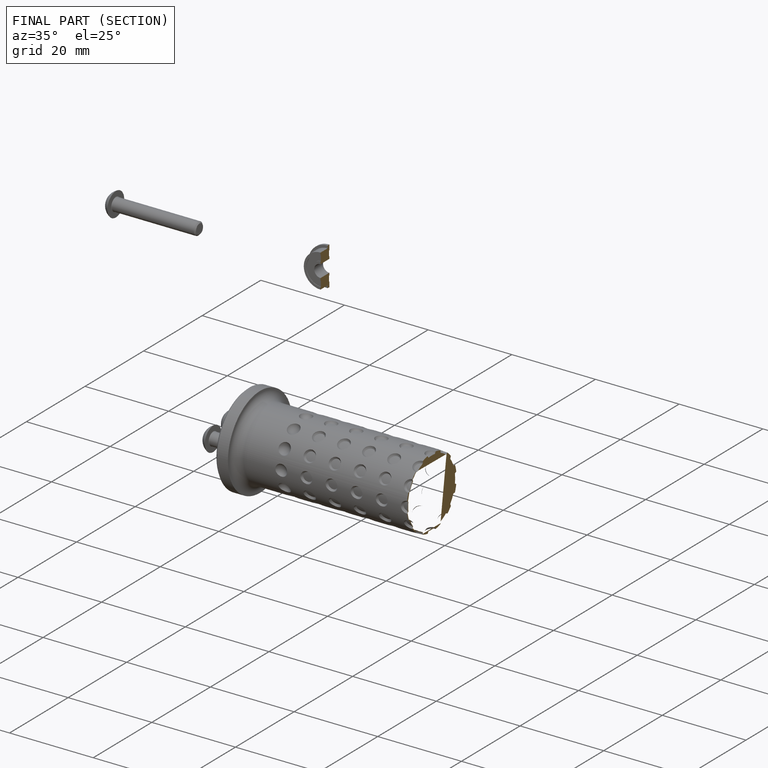
[diagram: finished part — half-section view (interior)]
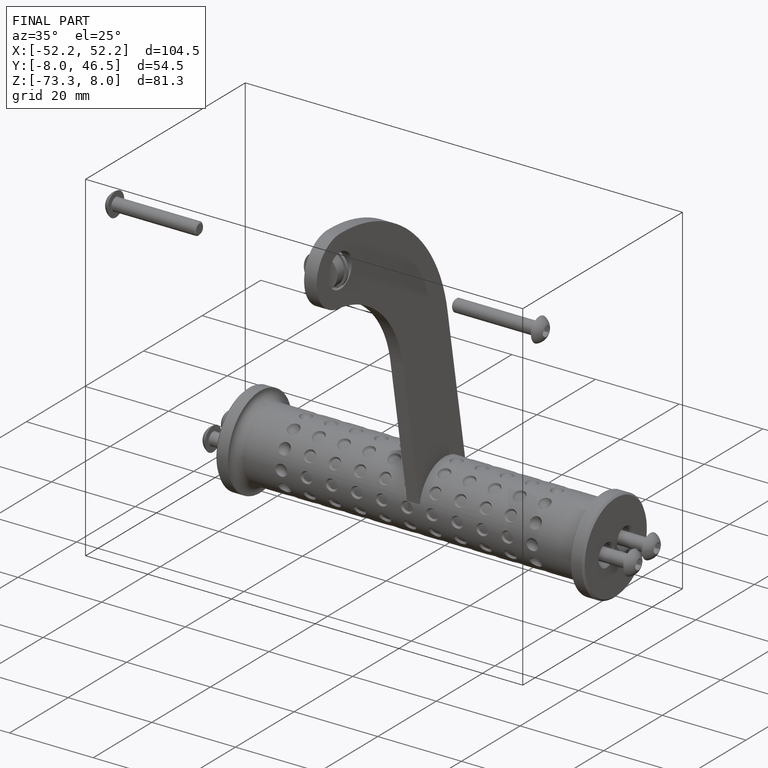
[diagram: finished part — iso view with bounding-box wireframe]
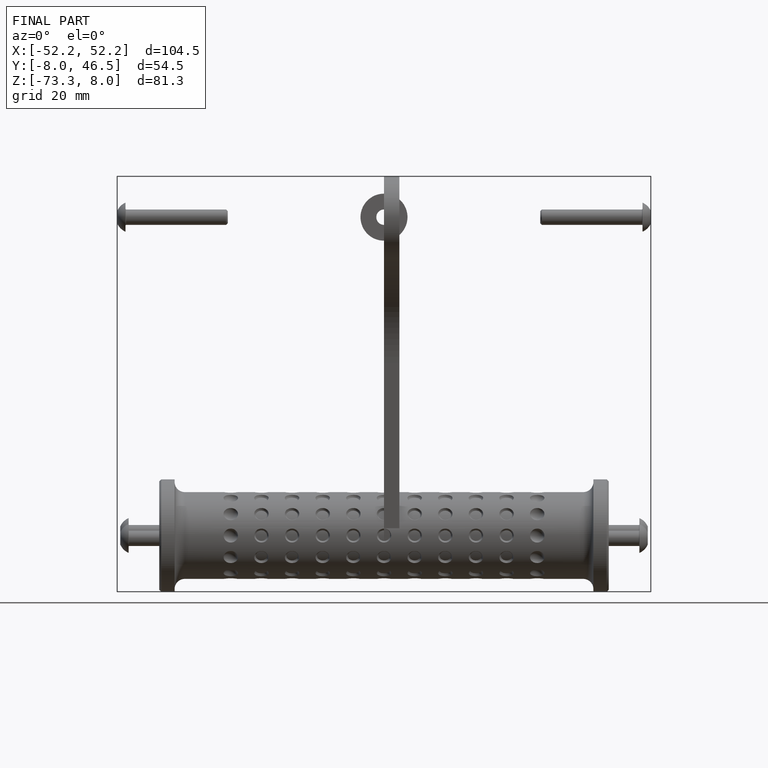
[diagram: finished part — front view with bounding-box wireframe]
